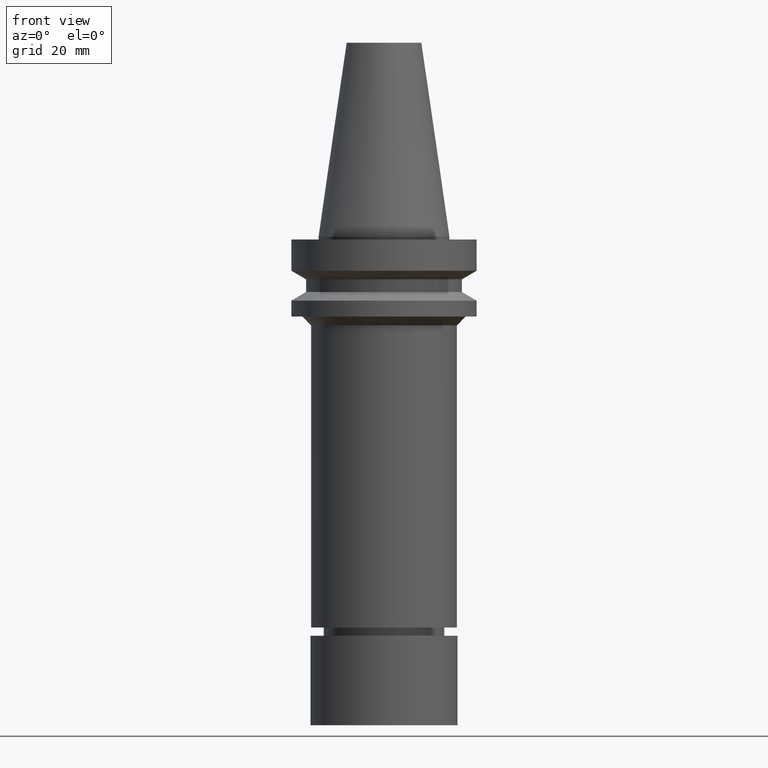
[diagram: clean part render]
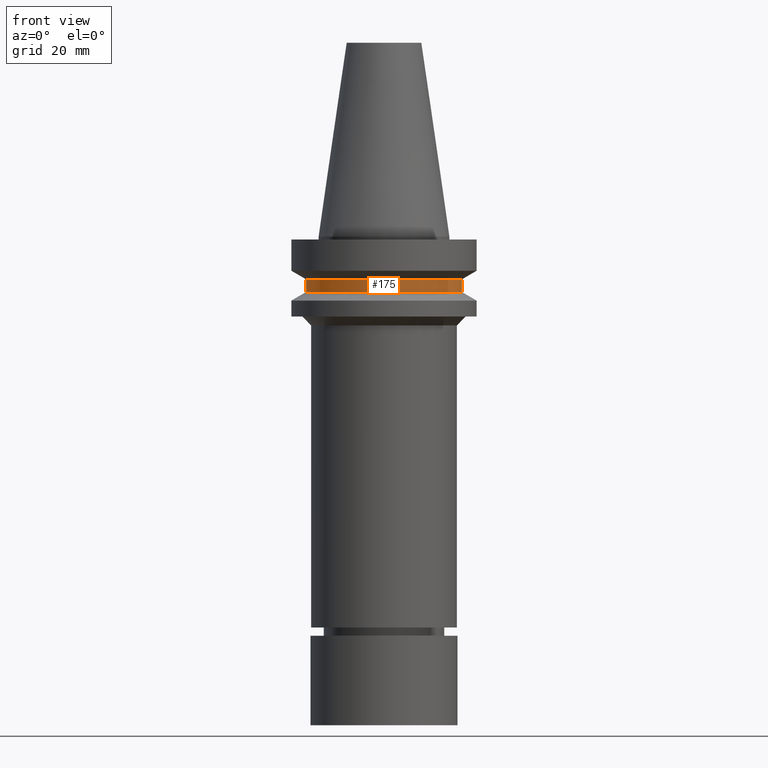
[diagram: same view with one face highlighted and labeled with its STEP entity id]
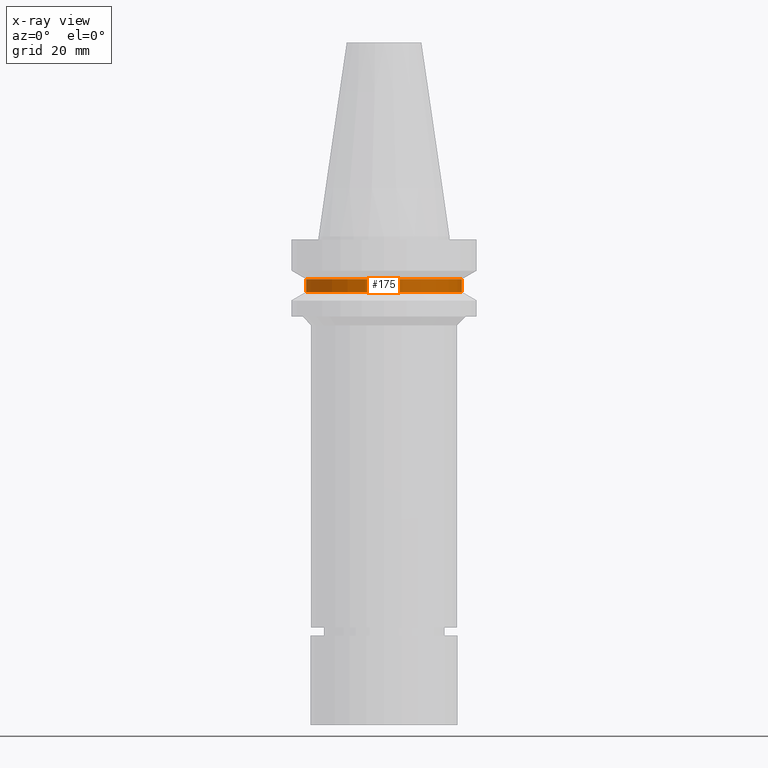
[diagram: x-ray of the same camera — body ghosted, the highlighted face saturated]
A machine part, front view. The second image highlights one B-rep face of the part: STEP entity #175.
The next image is the same camera in x-ray: the body ghosted, the highlighted face saturated — about 0% of this face is hidden behind the body in this view.
In plain terms, the highlighted cylindrical surface (bore or boss wall) has radius 26.5 mm, axis along (0, 0, -1).
Its self-contained STEP definition (entity closure, byte-faithful):
#141=EDGE_CURVE('Unnamed[1]',#301,#301,#302,.T.);
#175=ADVANCED_FACE('Unnamed[1]',(#353,#354),#355,.T.);
#180=EDGE_CURVE('Unnamed[1]',#362,#362,#363,.T.);
#301=VERTEX_POINT('',#502);
#302=CIRCLE('',#503,26.5);
#353=FACE_BOUND('',#566,.T.);
#354=FACE_BOUND('',#567,.T.);
#355=CYLINDRICAL_SURFACE('',#568,26.4999999999997);
#362=VERTEX_POINT('',#577);
#363=CIRCLE('',#578,26.4999999999994);
#502=CARTESIAN_POINT('',(1.1479681728942E-015,26.5,-18.7477430013855));
#503=AXIS2_PLACEMENT_3D('',#691,#692,#693);
#566=EDGE_LOOP('',(#747));
#567=EDGE_LOOP('',(#748));
#568=AXIS2_PLACEMENT_3D('',#749,#750,#751);
#577=CARTESIAN_POINT('',(8.8494551369045E-016,26.4999999999995,-14.4522569986152));
#578=AXIS2_PLACEMENT_3D('',#758,#759,#760);
#691=CARTESIAN_POINT('',(1.1479681728942E-015,7.78336510443449E-014,-18.7477430013855));
#692=DIRECTION('',(6.12323399573677E-017,7.81354581145528E-018,-1.0));
#693=DIRECTION('',(-5.30559442416852E-033,1.0,7.81354581145528E-018));
#747=ORIENTED_EDGE('',*,*,#141,.F.);
#748=ORIENTED_EDGE('',*,*,#180,.T.);
#749=CARTESIAN_POINT('',(1.01645684329232E-015,7.78168695560124E-014,-16.6000000000003));
#750=DIRECTION('',(6.12323399573677E-017,7.81354581145529E-018,-1.0));
#751=DIRECTION('',(-5.30559442416852E-033,1.0,7.81354581145529E-018));
#758=CARTESIAN_POINT('',(8.84945513690451E-016,7.78000880676798E-014,-14.4522569986152));
#759=DIRECTION('',(6.12323399573677E-017,7.81354581145529E-018,-1.0));
#760=DIRECTION('',(-5.30559442416852E-033,1.0,7.81354581145529E-018));